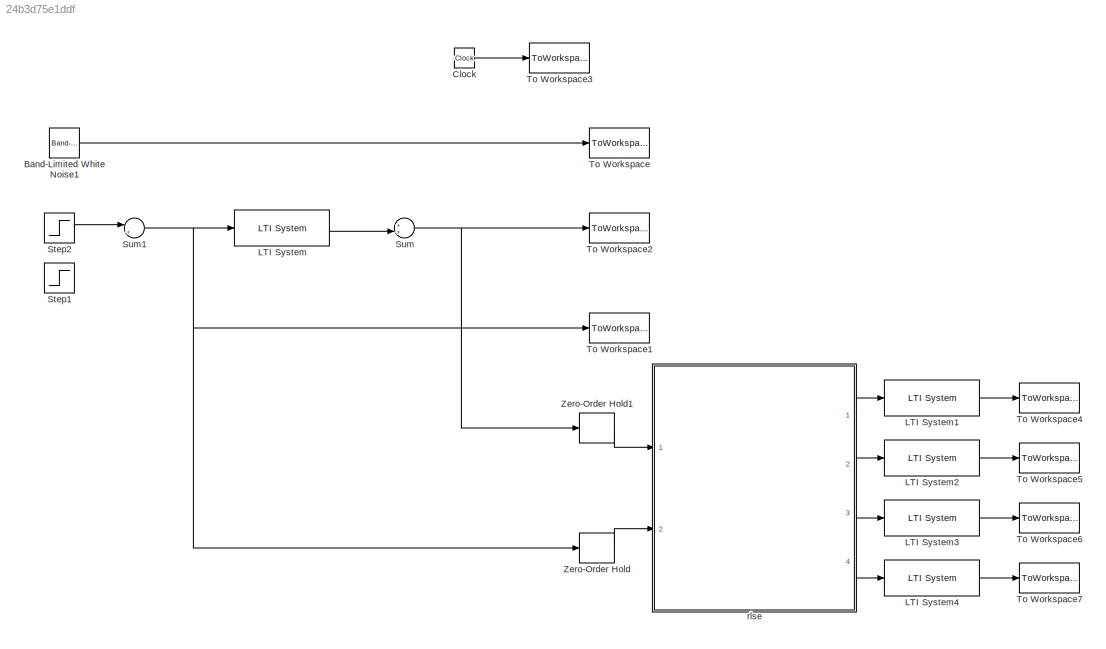
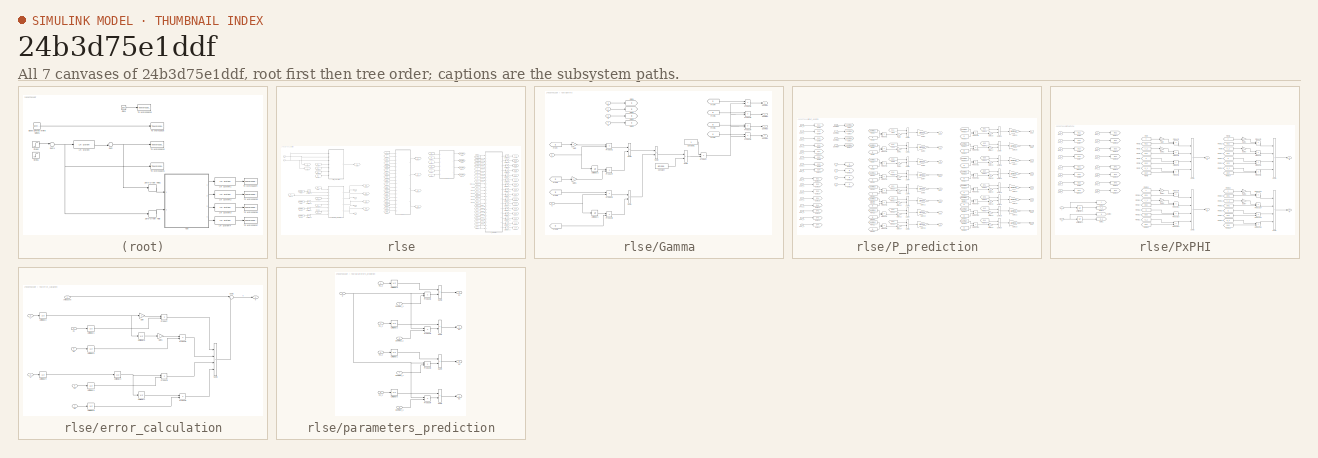
[diagram: thumbnail index - all 7 canvases of the model, root first then tree order]
MODEL slx_24b3d75e1ddf
KIND model
CONFIG AbsTol = auto
CONFIG EnableMultiTasking = off
CONFIG FixedStep = auto
CONFIG MaxStep = Ts
CONFIG MinStep = auto
CONFIG RelTol = Ts
CONFIG SampleTimeConstraint = Unconstrained
CONFIG Solver = VariableStepAuto
CONFIG SolverName = VariableStepAuto
CONFIG StartTime = 0.0
CONFIG StopTime = simlength
BLOCK [Reference] Band-Limited White Noise1  REF=simulink/Sources/Band-Limited
White Noise
  Ports = [0, 1]
  SourceBlock = simulink/Sources/Band-Limited\nWhite Noise
  SourceProductBaseCode = SL
  SourceType = Band-Limited White Noise.
BLOCK [Clock] Clock
BLOCK [Reference] LTI System  REF=cstblocks/LTI System
  Ports = [1, 1]
  SourceBlock = cstblocks/LTI System
  SourceProductBaseCode = CT
  SourceType = LTI Block
BLOCK [Reference] LTI System1  REF=cstblocks/LTI System
  Ports = [1, 1]
  SourceBlock = cstblocks/LTI System
  SourceProductBaseCode = CT
  SourceType = LTI Block
BLOCK [Reference] LTI System2  REF=cstblocks/LTI System
  Ports = [1, 1]
  SourceBlock = cstblocks/LTI System
  SourceProductBaseCode = CT
  SourceType = LTI Block
BLOCK [Reference] LTI System3  REF=cstblocks/LTI System
  Ports = [1, 1]
  SourceBlock = cstblocks/LTI System
  SourceProductBaseCode = CT
  SourceType = LTI Block
BLOCK [Reference] LTI System4  REF=cstblocks/LTI System
  Ports = [1, 1]
  SourceBlock = cstblocks/LTI System
  SourceProductBaseCode = CT
  SourceType = LTI Block
BLOCK [Step] Step1
  After = 0.5
  SampleTime = Tcontrol
  Time = simlength/2
BLOCK [Step] Step2
  After = 0.5
  SampleTime = Tcontrol
  Time = 0.05
BLOCK [Sum] Sum
  Inputs = ++|
  Ports = [2, 1]
BLOCK [Sum] Sum1
  Inputs = |++
  Ports = [2, 1]
BLOCK [ToWorkspace] To Workspace
  FixptAsFi = on
  MaxDataPoints = Nc
  Ports = [1]
  SampleTime = Tc
  VariableName = noise
BLOCK [ToWorkspace] To Workspace1
  FixptAsFi = on
  MaxDataPoints = Nc
  Ports = [1]
  SampleTime = Tc
  VariableName = u_input
BLOCK [ToWorkspace] To Workspace2
  FixptAsFi = on
  MaxDataPoints = Nc
  Ports = [1]
  SampleTime = Tc
  VariableName = y_output
BLOCK [ToWorkspace] To Workspace3
  FixptAsFi = on
  MaxDataPoints = Nc
  Ports = [1]
  SampleTime = Tc
  VariableName = t
BLOCK [ToWorkspace] To Workspace4
  FixptAsFi = on
  MaxDataPoints = Nc
  Ports = [1]
  SampleTime = Tc
  VariableName = a1_hat
BLOCK [ToWorkspace] To Workspace5
  FixptAsFi = on
  MaxDataPoints = Nc
  Ports = [1]
  SampleTime = Tc
  VariableName = b1_hat
BLOCK [ToWorkspace] To Workspace6
  FixptAsFi = on
  MaxDataPoints = Nc
  Ports = [1]
  SampleTime = Tc
  VariableName = a2_hat
BLOCK [ToWorkspace] To Workspace7
  FixptAsFi = on
  MaxDataPoints = Nc
  Ports = [1]
  SampleTime = Tc
  VariableName = b2_hat
BLOCK [ZeroOrderHold] Zero-Order Hold
  SampleTime = Tcontrol
BLOCK [ZeroOrderHold] Zero-Order Hold1
  SampleTime = Tcontrol
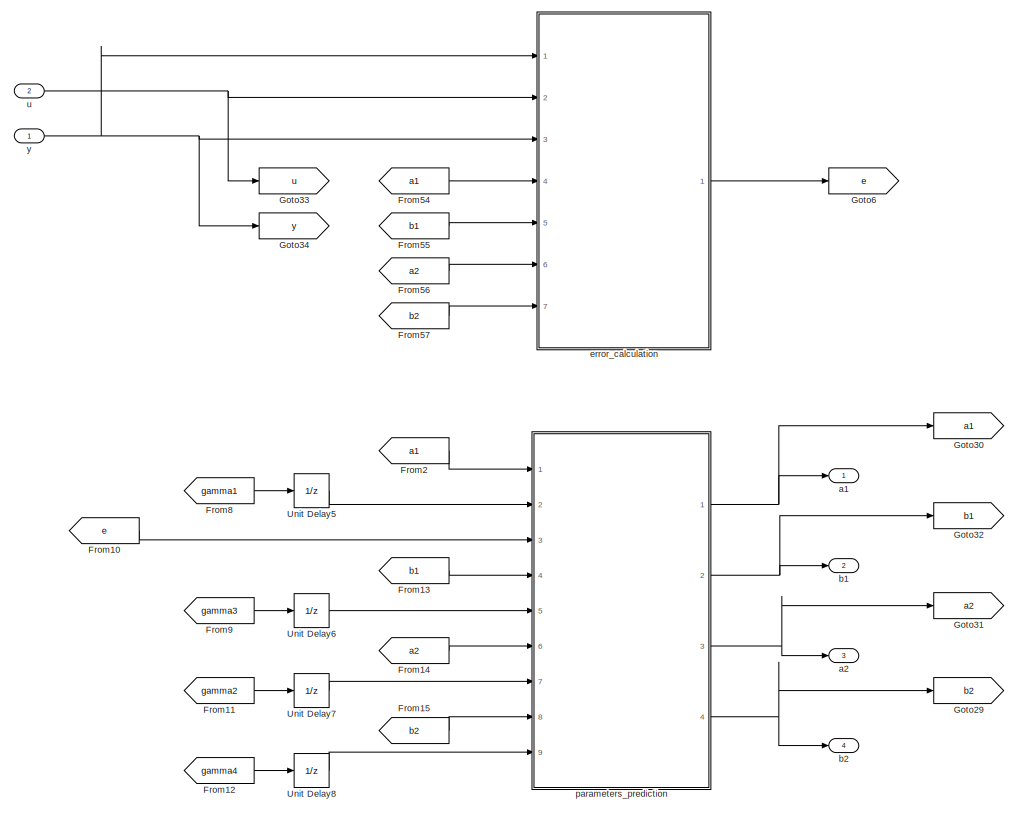
[diagram: rlse - part 1/3, left side, full height]
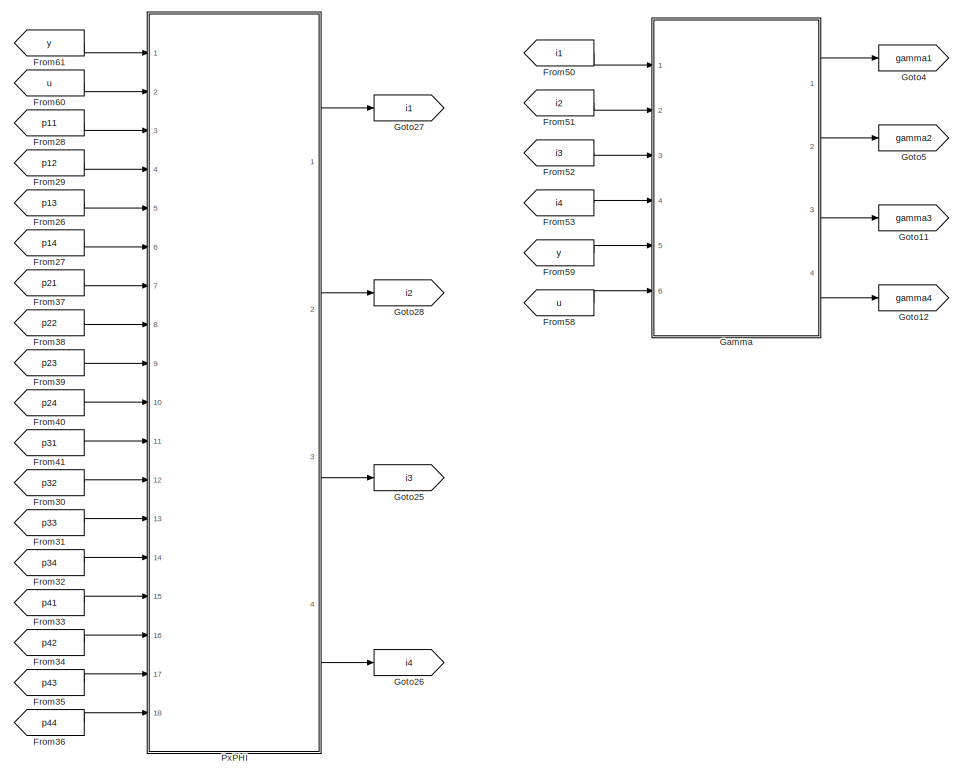
[diagram: rlse - part 2/3, center side, full height]
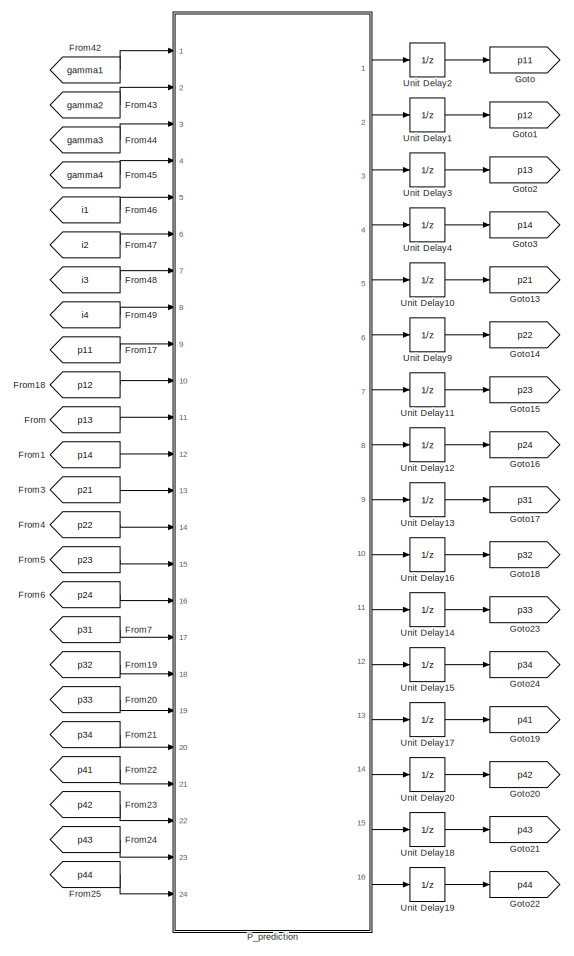
[diagram: rlse - part 3/3, right side, full height]
BLOCK [SubSystem] rlse
  Ports = [2, 4]
  RequestExecContextInheritance = off
BLOCK [From] rlse/From
  GotoTag = p13
BLOCK [From] rlse/From1
  GotoTag = p14
BLOCK [From] rlse/From10
  GotoTag = e
  TagVisibility = global
BLOCK [From] rlse/From11
  GotoTag = gamma2
BLOCK [From] rlse/From12
  GotoTag = gamma4
BLOCK [From] rlse/From13
  GotoTag = b1
BLOCK [From] rlse/From14
  GotoTag = a2
BLOCK [From] rlse/From15
  GotoTag = b2
BLOCK [From] rlse/From17
  GotoTag = p11
BLOCK [From] rlse/From18
  GotoTag = p12
BLOCK [From] rlse/From19
  GotoTag = p32
BLOCK [From] rlse/From2
  GotoTag = a1
BLOCK [From] rlse/From20
  GotoTag = p33
BLOCK [From] rlse/From21
  GotoTag = p34
BLOCK [From] rlse/From22
  GotoTag = p41
BLOCK [From] rlse/From23
  GotoTag = p42
BLOCK [From] rlse/From24
  GotoTag = p43
BLOCK [From] rlse/From25
  GotoTag = p44
BLOCK [From] rlse/From26
  GotoTag = p13
BLOCK [From] rlse/From27
  GotoTag = p14
BLOCK [From] rlse/From28
  GotoTag = p11
BLOCK [From] rlse/From29
  GotoTag = p12
BLOCK [From] rlse/From3
  GotoTag = p21
BLOCK [From] rlse/From30
  GotoTag = p32
BLOCK [From] rlse/From31
  GotoTag = p33
BLOCK [From] rlse/From32
  GotoTag = p34
BLOCK [From] rlse/From33
  GotoTag = p41
BLOCK [From] rlse/From34
  GotoTag = p42
BLOCK [From] rlse/From35
  GotoTag = p43
BLOCK [From] rlse/From36
  GotoTag = p44
BLOCK [From] rlse/From37
  GotoTag = p21
BLOCK [From] rlse/From38
  GotoTag = p22
BLOCK [From] rlse/From39
  GotoTag = p23
BLOCK [From] rlse/From4
  GotoTag = p22
BLOCK [From] rlse/From40
  GotoTag = p24
BLOCK [From] rlse/From41
  GotoTag = p31
BLOCK [From] rlse/From42
  GotoTag = gamma1
BLOCK [From] rlse/From43
  GotoTag = gamma2
BLOCK [From] rlse/From44
  GotoTag = gamma3
BLOCK [From] rlse/From45
  GotoTag = gamma4
BLOCK [From] rlse/From46
  GotoTag = i1
BLOCK [From] rlse/From47
  GotoTag = i2
BLOCK [From] rlse/From48
  GotoTag = i3
BLOCK [From] rlse/From49
  GotoTag = i4
BLOCK [From] rlse/From5
  GotoTag = p23
BLOCK [From] rlse/From50
  GotoTag = i1
BLOCK [From] rlse/From51
  GotoTag = i2
BLOCK [From] rlse/From52
  GotoTag = i3
BLOCK [From] rlse/From53
  GotoTag = i4
BLOCK [From] rlse/From54
  GotoTag = a1
BLOCK [From] rlse/From55
  GotoTag = b1
BLOCK [From] rlse/From56
  GotoTag = a2
BLOCK [From] rlse/From57
  GotoTag = b2
BLOCK [From] rlse/From58
  GotoTag = u
BLOCK [From] rlse/From59
  GotoTag = y
BLOCK [From] rlse/From6
  GotoTag = p24
BLOCK [From] rlse/From60
  GotoTag = u
BLOCK [From] rlse/From61
  GotoTag = y
BLOCK [From] rlse/From7
  GotoTag = p31
BLOCK [From] rlse/From8
  GotoTag = gamma1
BLOCK [From] rlse/From9
  GotoTag = gamma3
BLOCK [SubSystem] rlse/Gamma
  Ports = [6, 4]
  RequestExecContextInheritance = off
BLOCK [Constant] rlse/Gamma/Constant
  Value = lambda
BLOCK [Constant] rlse/Gamma/Constant1
BLOCK [From] rlse/Gamma/From
  GotoTag = i1
BLOCK [From] rlse/Gamma/From1
  GotoTag = i2
BLOCK [From] rlse/Gamma/From2
  GotoTag = i3
BLOCK [From] rlse/Gamma/From3
  GotoTag = i4
BLOCK [From] rlse/Gamma/From4
  GotoTag = i1
BLOCK [From] rlse/Gamma/From5
  GotoTag = i2
BLOCK [From] rlse/Gamma/From6
  GotoTag = i3
BLOCK [From] rlse/Gamma/From7
  GotoTag = i4
BLOCK [Gain] rlse/Gamma/Gain
  Gain = -1
BLOCK [Gain] rlse/Gamma/Gain1
  Gain = -1
BLOCK [Goto] rlse/Gamma/Goto1
  GotoTag = i2
BLOCK [Goto] rlse/Gamma/Goto2
  GotoTag = i3
BLOCK [Goto] rlse/Gamma/Goto3
  GotoTag = i4
BLOCK [Goto] rlse/Gamma/Goto4
  GotoTag = i1
BLOCK [Product] rlse/Gamma/Product
  Inputs = */
  Ports = [2, 1]
BLOCK [Product] rlse/Gamma/Product1
  Ports = [2, 1]
BLOCK [Product] rlse/Gamma/Product2
  Ports = [2, 1]
BLOCK [Product] rlse/Gamma/Product3
  Ports = [2, 1]
BLOCK [Product] rlse/Gamma/Product4
  Ports = [2, 1]
BLOCK [Product] rlse/Gamma/Product5
  Ports = [2, 1]
BLOCK [Product] rlse/Gamma/Product6
  Ports = [2, 1]
BLOCK [Product] rlse/Gamma/Product7
  Ports = [2, 1]
BLOCK [Product] rlse/Gamma/Product8
  Ports = [2, 1]
BLOCK [Sum] rlse/Gamma/Sum1
  IconShape = rectangular
  Ports = [2, 1]
BLOCK [Sum] rlse/Gamma/Sum2
  IconShape = rectangular
  Ports = [2, 1]
BLOCK [Sum] rlse/Gamma/Sum3
  IconShape = rectangular
  Ports = [2, 1]
BLOCK [Sum] rlse/Gamma/Sum5
  IconShape = rectangular
  Ports = [2, 1]
BLOCK [UnitDelay] rlse/Gamma/Unit Delay1
  HasFrameUpgradeWarning = on
  SampleTime = Tcontrol
BLOCK [UnitDelay] rlse/Gamma/Unit Delay2
  HasFrameUpgradeWarning = on
  SampleTime = Tcontrol
BLOCK [Outport] rlse/Gamma/gamma1
  VectorParamsAs1DForOutWhenUnconnected = off
BLOCK [Outport] rlse/Gamma/gamma2
  Port = 2
  VectorParamsAs1DForOutWhenUnconnected = off
BLOCK [Outport] rlse/Gamma/gamma3
  Port = 3
  VectorParamsAs1DForOutWhenUnconnected = off
BLOCK [Outport] rlse/Gamma/gamma4
  Port = 4
  VectorParamsAs1DForOutWhenUnconnected = off
BLOCK [Inport] rlse/Gamma/i1
BLOCK [Inport] rlse/Gamma/i2
  Port = 2
BLOCK [Inport] rlse/Gamma/i3
  Port = 3
BLOCK [Inport] rlse/Gamma/i4
  Port = 4
BLOCK [Inport] rlse/Gamma/u
  Port = 6
BLOCK [Inport] rlse/Gamma/y
  Port = 5
BLOCK [Goto] rlse/Goto
  GotoTag = p11
BLOCK [Goto] rlse/Goto1
  GotoTag = p12
BLOCK [Goto] rlse/Goto11
  GotoTag = gamma3
BLOCK [Goto] rlse/Goto12
  GotoTag = gamma4
BLOCK [Goto] rlse/Goto13
  GotoTag = p21
BLOCK [Goto] rlse/Goto14
  GotoTag = p22
BLOCK [Goto] rlse/Goto15
  GotoTag = p23
BLOCK [Goto] rlse/Goto16
  GotoTag = p24
BLOCK [Goto] rlse/Goto17
  GotoTag = p31
BLOCK [Goto] rlse/Goto18
  GotoTag = p32
BLOCK [Goto] rlse/Goto19
  GotoTag = p41
BLOCK [Goto] rlse/Goto2
  GotoTag = p13
BLOCK [Goto] rlse/Goto20
  GotoTag = p42
BLOCK [Goto] rlse/Goto21
  GotoTag = p43
BLOCK [Goto] rlse/Goto22
  GotoTag = p44
BLOCK [Goto] rlse/Goto23
  GotoTag = p33
BLOCK [Goto] rlse/Goto24
  GotoTag = p34
BLOCK [Goto] rlse/Goto25
  GotoTag = i3
BLOCK [Goto] rlse/Goto26
  GotoTag = i4
BLOCK [Goto] rlse/Goto27
  GotoTag = i1
BLOCK [Goto] rlse/Goto28
  GotoTag = i2
BLOCK [Goto] rlse/Goto29
  GotoTag = b2
BLOCK [Goto] rlse/Goto3
  GotoTag = p14
BLOCK [Goto] rlse/Goto30
  GotoTag = a1
BLOCK [Goto] rlse/Goto31
  GotoTag = a2
BLOCK [Goto] rlse/Goto32
  GotoTag = b1
BLOCK [Goto] rlse/Goto33
  GotoTag = u
BLOCK [Goto] rlse/Goto34
  GotoTag = y
BLOCK [Goto] rlse/Goto4
  GotoTag = gamma1
BLOCK [Goto] rlse/Goto5
  GotoTag = gamma2
BLOCK [Goto] rlse/Goto6
  GotoTag = e
  TagVisibility = global
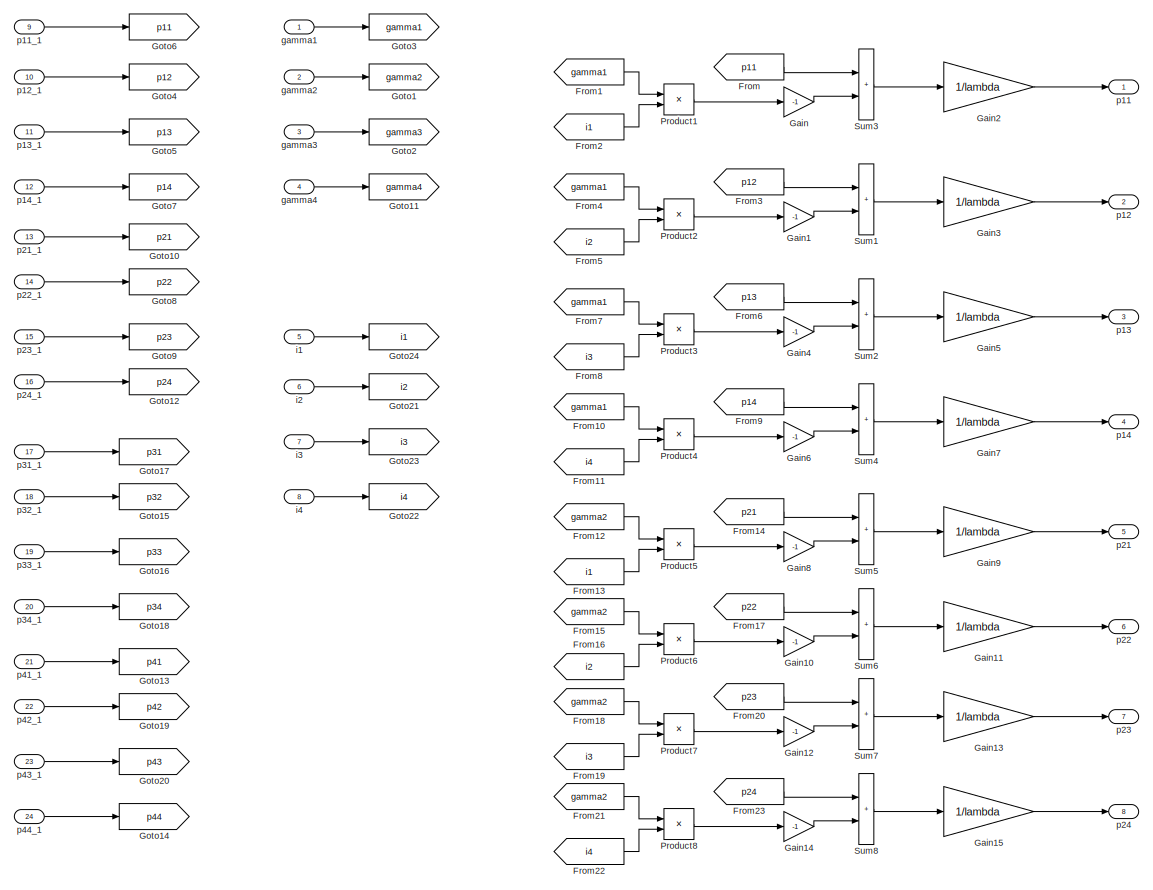
[diagram: rlse/P_prediction - part 1/2, left side, full height]
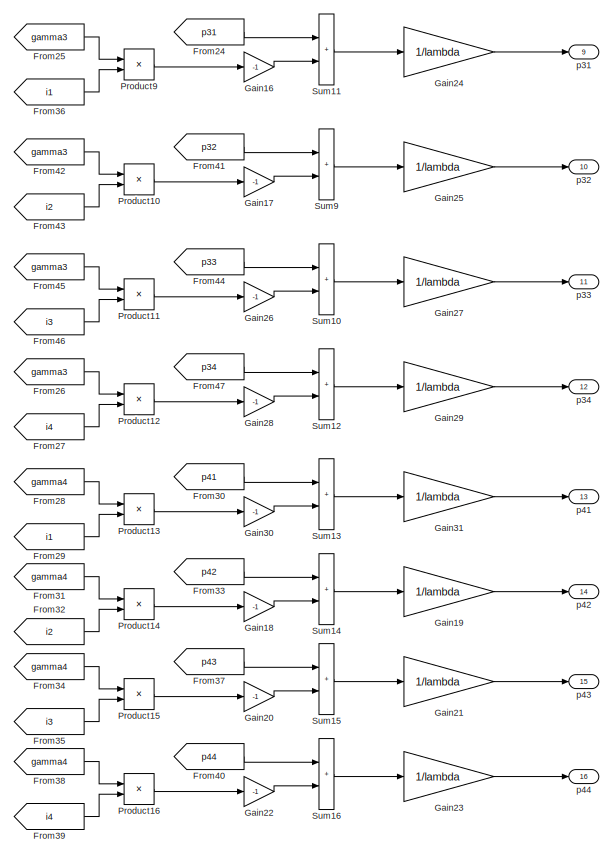
[diagram: rlse/P_prediction - part 2/2, right side, full height]
BLOCK [SubSystem] rlse/P_prediction
  Ports = [24, 16]
  RequestExecContextInheritance = off
BLOCK [From] rlse/P_prediction/From
  GotoTag = p11
BLOCK [From] rlse/P_prediction/From1
  GotoTag = gamma1
BLOCK [From] rlse/P_prediction/From10
  GotoTag = gamma1
BLOCK [From] rlse/P_prediction/From11
  GotoTag = i4
BLOCK [From] rlse/P_prediction/From12
  GotoTag = gamma2
BLOCK [From] rlse/P_prediction/From13
  GotoTag = i1
BLOCK [From] rlse/P_prediction/From14
  GotoTag = p21
BLOCK [From] rlse/P_prediction/From15
  GotoTag = gamma2
BLOCK [From] rlse/P_prediction/From16
  GotoTag = i2
BLOCK [From] rlse/P_prediction/From17
  GotoTag = p22
BLOCK [From] rlse/P_prediction/From18
  GotoTag = gamma2
BLOCK [From] rlse/P_prediction/From19
  GotoTag = i3
BLOCK [From] rlse/P_prediction/From2
  GotoTag = i1
BLOCK [From] rlse/P_prediction/From20
  GotoTag = p23
BLOCK [From] rlse/P_prediction/From21
  GotoTag = gamma2
BLOCK [From] rlse/P_prediction/From22
  GotoTag = i4
BLOCK [From] rlse/P_prediction/From23
  GotoTag = p24
BLOCK [From] rlse/P_prediction/From24
  GotoTag = p31
BLOCK [From] rlse/P_prediction/From25
  GotoTag = gamma3
BLOCK [From] rlse/P_prediction/From26
  GotoTag = gamma3
BLOCK [From] rlse/P_prediction/From27
  GotoTag = i4
BLOCK [From] rlse/P_prediction/From28
  GotoTag = gamma4
BLOCK [From] rlse/P_prediction/From29
  GotoTag = i1
BLOCK [From] rlse/P_prediction/From3
  GotoTag = p12
BLOCK [From] rlse/P_prediction/From30
  GotoTag = p41
BLOCK [From] rlse/P_prediction/From31
  GotoTag = gamma4
BLOCK [From] rlse/P_prediction/From32
  GotoTag = i2
BLOCK [From] rlse/P_prediction/From33
  GotoTag = p42
BLOCK [From] rlse/P_prediction/From34
  GotoTag = gamma4
BLOCK [From] rlse/P_prediction/From35
  GotoTag = i3
BLOCK [From] rlse/P_prediction/From36
  GotoTag = i1
BLOCK [From] rlse/P_prediction/From37
  GotoTag = p43
BLOCK [From] rlse/P_prediction/From38
  GotoTag = gamma4
BLOCK [From] rlse/P_prediction/From39
  GotoTag = i4
BLOCK [From] rlse/P_prediction/From4
  GotoTag = gamma1
BLOCK [From] rlse/P_prediction/From40
  GotoTag = p44
BLOCK [From] rlse/P_prediction/From41
  GotoTag = p32
BLOCK [From] rlse/P_prediction/From42
  GotoTag = gamma3
BLOCK [From] rlse/P_prediction/From43
  GotoTag = i2
BLOCK [From] rlse/P_prediction/From44
  GotoTag = p33
BLOCK [From] rlse/P_prediction/From45
  GotoTag = gamma3
BLOCK [From] rlse/P_prediction/From46
  GotoTag = i3
BLOCK [From] rlse/P_prediction/From47
  GotoTag = p34
BLOCK [From] rlse/P_prediction/From5
  GotoTag = i2
BLOCK [From] rlse/P_prediction/From6
  GotoTag = p13
BLOCK [From] rlse/P_prediction/From7
  GotoTag = gamma1
BLOCK [From] rlse/P_prediction/From8
  GotoTag = i3
BLOCK [From] rlse/P_prediction/From9
  GotoTag = p14
BLOCK [Gain] rlse/P_prediction/Gain
  Gain = -1
BLOCK [Gain] rlse/P_prediction/Gain1
  Gain = -1
BLOCK [Gain] rlse/P_prediction/Gain10
  Gain = -1
BLOCK [Gain] rlse/P_prediction/Gain11
  Gain = 1/lambda
BLOCK [Gain] rlse/P_prediction/Gain12
  Gain = -1
BLOCK [Gain] rlse/P_prediction/Gain13
  Gain = 1/lambda
BLOCK [Gain] rlse/P_prediction/Gain14
  Gain = -1
BLOCK [Gain] rlse/P_prediction/Gain15
  Gain = 1/lambda
BLOCK [Gain] rlse/P_prediction/Gain16
  Gain = -1
BLOCK [Gain] rlse/P_prediction/Gain17
  Gain = -1
BLOCK [Gain] rlse/P_prediction/Gain18
  Gain = -1
BLOCK [Gain] rlse/P_prediction/Gain19
  Gain = 1/lambda
BLOCK [Gain] rlse/P_prediction/Gain2
  Gain = 1/lambda
BLOCK [Gain] rlse/P_prediction/Gain20
  Gain = -1
BLOCK [Gain] rlse/P_prediction/Gain21
  Gain = 1/lambda
BLOCK [Gain] rlse/P_prediction/Gain22
  Gain = -1
BLOCK [Gain] rlse/P_prediction/Gain23
  Gain = 1/lambda
BLOCK [Gain] rlse/P_prediction/Gain24
  Gain = 1/lambda
BLOCK [Gain] rlse/P_prediction/Gain25
  Gain = 1/lambda
BLOCK [Gain] rlse/P_prediction/Gain26
  Gain = -1
BLOCK [Gain] rlse/P_prediction/Gain27
  Gain = 1/lambda
BLOCK [Gain] rlse/P_prediction/Gain28
  Gain = -1
BLOCK [Gain] rlse/P_prediction/Gain29
  Gain = 1/lambda
BLOCK [Gain] rlse/P_prediction/Gain3
  Gain = 1/lambda
BLOCK [Gain] rlse/P_prediction/Gain30
  Gain = -1
BLOCK [Gain] rlse/P_prediction/Gain31
  Gain = 1/lambda
BLOCK [Gain] rlse/P_prediction/Gain4
  Gain = -1
BLOCK [Gain] rlse/P_prediction/Gain5
  Gain = 1/lambda
BLOCK [Gain] rlse/P_prediction/Gain6
  Gain = -1
BLOCK [Gain] rlse/P_prediction/Gain7
  Gain = 1/lambda
BLOCK [Gain] rlse/P_prediction/Gain8
  Gain = -1
BLOCK [Gain] rlse/P_prediction/Gain9
  Gain = 1/lambda
BLOCK [Goto] rlse/P_prediction/Goto1
  GotoTag = gamma2
BLOCK [Goto] rlse/P_prediction/Goto10
  GotoTag = p21
BLOCK [Goto] rlse/P_prediction/Goto11
  GotoTag = gamma4
BLOCK [Goto] rlse/P_prediction/Goto12
  GotoTag = p24
BLOCK [Goto] rlse/P_prediction/Goto13
  GotoTag = p41
BLOCK [Goto] rlse/P_prediction/Goto14
  GotoTag = p44
BLOCK [Goto] rlse/P_prediction/Goto15
  GotoTag = p32
BLOCK [Goto] rlse/P_prediction/Goto16
  GotoTag = p33
BLOCK [Goto] rlse/P_prediction/Goto17
  GotoTag = p31
BLOCK [Goto] rlse/P_prediction/Goto18
  GotoTag = p34
BLOCK [Goto] rlse/P_prediction/Goto19
  GotoTag = p42
BLOCK [Goto] rlse/P_prediction/Goto2
  GotoTag = gamma3
BLOCK [Goto] rlse/P_prediction/Goto20
  GotoTag = p43
BLOCK [Goto] rlse/P_prediction/Goto21
  GotoTag = i2
BLOCK [Goto] rlse/P_prediction/Goto22
  GotoTag = i4
BLOCK [Goto] rlse/P_prediction/Goto23
  GotoTag = i3
BLOCK [Goto] rlse/P_prediction/Goto24
  GotoTag = i1
BLOCK [Goto] rlse/P_prediction/Goto3
  GotoTag = gamma1
BLOCK [Goto] rlse/P_prediction/Goto4
  GotoTag = p12
BLOCK [Goto] rlse/P_prediction/Goto5
  GotoTag = p13
BLOCK [Goto] rlse/P_prediction/Goto6
  GotoTag = p11
BLOCK [Goto] rlse/P_prediction/Goto7
  GotoTag = p14
BLOCK [Goto] rlse/P_prediction/Goto8
  GotoTag = p22
BLOCK [Goto] rlse/P_prediction/Goto9
  GotoTag = p23
BLOCK [Product] rlse/P_prediction/Product1
  Ports = [2, 1]
BLOCK [Product] rlse/P_prediction/Product10
  Ports = [2, 1]
BLOCK [Product] rlse/P_prediction/Product11
  Ports = [2, 1]
BLOCK [Product] rlse/P_prediction/Product12
  Ports = [2, 1]
BLOCK [Product] rlse/P_prediction/Product13
  Ports = [2, 1]
BLOCK [Product] rlse/P_prediction/Product14
  Ports = [2, 1]
BLOCK [Product] rlse/P_prediction/Product15
  Ports = [2, 1]
BLOCK [Product] rlse/P_prediction/Product16
  Ports = [2, 1]
BLOCK [Product] rlse/P_prediction/Product2
  Ports = [2, 1]
BLOCK [Product] rlse/P_prediction/Product3
  Ports = [2, 1]
BLOCK [Product] rlse/P_prediction/Product4
  Ports = [2, 1]
BLOCK [Product] rlse/P_prediction/Product5
  Ports = [2, 1]
BLOCK [Product] rlse/P_prediction/Product6
  Ports = [2, 1]
BLOCK [Product] rlse/P_prediction/Product7
  Ports = [2, 1]
BLOCK [Product] rlse/P_prediction/Product8
  Ports = [2, 1]
BLOCK [Product] rlse/P_prediction/Product9
  Ports = [2, 1]
BLOCK [Sum] rlse/P_prediction/Sum1
  IconShape = rectangular
  Ports = [2, 1]
BLOCK [Sum] rlse/P_prediction/Sum10
  IconShape = rectangular
  Ports = [2, 1]
BLOCK [Sum] rlse/P_prediction/Sum11
  IconShape = rectangular
  Ports = [2, 1]
BLOCK [Sum] rlse/P_prediction/Sum12
  IconShape = rectangular
  Ports = [2, 1]
BLOCK [Sum] rlse/P_prediction/Sum13
  IconShape = rectangular
  Ports = [2, 1]
BLOCK [Sum] rlse/P_prediction/Sum14
  IconShape = rectangular
  Ports = [2, 1]
BLOCK [Sum] rlse/P_prediction/Sum15
  IconShape = rectangular
  Ports = [2, 1]
BLOCK [Sum] rlse/P_prediction/Sum16
  IconShape = rectangular
  Ports = [2, 1]
BLOCK [Sum] rlse/P_prediction/Sum2
  IconShape = rectangular
  Ports = [2, 1]
BLOCK [Sum] rlse/P_prediction/Sum3
  IconShape = rectangular
  Ports = [2, 1]
BLOCK [Sum] rlse/P_prediction/Sum4
  IconShape = rectangular
  Ports = [2, 1]
BLOCK [Sum] rlse/P_prediction/Sum5
  IconShape = rectangular
  Ports = [2, 1]
BLOCK [Sum] rlse/P_prediction/Sum6
  IconShape = rectangular
  Ports = [2, 1]
BLOCK [Sum] rlse/P_prediction/Sum7
  IconShape = rectangular
  Ports = [2, 1]
BLOCK [Sum] rlse/P_prediction/Sum8
  IconShape = rectangular
  Ports = [2, 1]
BLOCK [Sum] rlse/P_prediction/Sum9
  IconShape = rectangular
  Ports = [2, 1]
BLOCK [Inport] rlse/P_prediction/gamma1
BLOCK [Inport] rlse/P_prediction/gamma2
  Port = 2
BLOCK [Inport] rlse/P_prediction/gamma3
  Port = 3
BLOCK [Inport] rlse/P_prediction/gamma4
  Port = 4
BLOCK [Inport] rlse/P_prediction/i1
  Port = 5
BLOCK [Inport] rlse/P_prediction/i2
  Port = 6
BLOCK [Inport] rlse/P_prediction/i3
  Port = 7
BLOCK [Inport] rlse/P_prediction/i4
  Port = 8
BLOCK [Outport] rlse/P_prediction/p11
  VectorParamsAs1DForOutWhenUnconnected = off
BLOCK [Inport] rlse/P_prediction/p11_1
  Port = 9
BLOCK [Outport] rlse/P_prediction/p12
  Port = 2
  VectorParamsAs1DForOutWhenUnconnected = off
BLOCK [Inport] rlse/P_prediction/p12_1
  Port = 10
BLOCK [Outport] rlse/P_prediction/p13
  Port = 3
  VectorParamsAs1DForOutWhenUnconnected = off
BLOCK [Inport] rlse/P_prediction/p13_1
  Port = 11
BLOCK [Outport] rlse/P_prediction/p14
  Port = 4
  VectorParamsAs1DForOutWhenUnconnected = off
BLOCK [Inport] rlse/P_prediction/p14_1
  Port = 12
BLOCK [Outport] rlse/P_prediction/p21
  Port = 5
  VectorParamsAs1DForOutWhenUnconnected = off
BLOCK [Inport] rlse/P_prediction/p21_1
  Port = 13
BLOCK [Outport] rlse/P_prediction/p22
  Port = 6
  VectorParamsAs1DForOutWhenUnconnected = off
BLOCK [Inport] rlse/P_prediction/p22_1
  Port = 14
BLOCK [Outport] rlse/P_prediction/p23
  Port = 7
  VectorParamsAs1DForOutWhenUnconnected = off
BLOCK [Inport] rlse/P_prediction/p23_1
  Port = 15
BLOCK [Outport] rlse/P_prediction/p24
  Port = 8
  VectorParamsAs1DForOutWhenUnconnected = off
BLOCK [Inport] rlse/P_prediction/p24_1
  Port = 16
BLOCK [Outport] rlse/P_prediction/p31
  Port = 9
  VectorParamsAs1DForOutWhenUnconnected = off
BLOCK [Inport] rlse/P_prediction/p31_1
  Port = 17
BLOCK [Outport] rlse/P_prediction/p32
  Port = 10
  VectorParamsAs1DForOutWhenUnconnected = off
BLOCK [Inport] rlse/P_prediction/p32_1
  Port = 18
BLOCK [Outport] rlse/P_prediction/p33
  Port = 11
  VectorParamsAs1DForOutWhenUnconnected = off
BLOCK [Inport] rlse/P_prediction/p33_1
  Port = 19
BLOCK [Outport] rlse/P_prediction/p34
  Port = 12
  VectorParamsAs1DForOutWhenUnconnected = off
BLOCK [Inport] rlse/P_prediction/p34_1
  Port = 20
BLOCK [Outport] rlse/P_prediction/p41
  Port = 13
  VectorParamsAs1DForOutWhenUnconnected = off
BLOCK [Inport] rlse/P_prediction/p41_1
  Port = 21
BLOCK [Outport] rlse/P_prediction/p42
  Port = 14
  VectorParamsAs1DForOutWhenUnconnected = off
BLOCK [Inport] rlse/P_prediction/p42_1
  Port = 22
BLOCK [Outport] rlse/P_prediction/p43
  Port = 15
  VectorParamsAs1DForOutWhenUnconnected = off
BLOCK [Inport] rlse/P_prediction/p43_1
  Port = 23
BLOCK [Outport] rlse/P_prediction/p44
  Port = 16
  VectorParamsAs1DForOutWhenUnconnected = off
BLOCK [Inport] rlse/P_prediction/p44_1
  Port = 24
BLOCK [SubSystem] rlse/PxPHI
  Ports = [18, 4]
  RequestExecContextInheritance = off
BLOCK [From] rlse/PxPHI/From
  GotoTag = y
BLOCK [From] rlse/PxPHI/From1
  GotoTag = y_1
BLOCK [From] rlse/PxPHI/From10
  GotoTag = p21
BLOCK [From] rlse/PxPHI/From11
  GotoTag = p22
BLOCK [From] rlse/PxPHI/From12
  GotoTag = u
BLOCK [From] rlse/PxPHI/From13
  GotoTag = p23
BLOCK [From] rlse/PxPHI/From14
  GotoTag = p24
BLOCK [From] rlse/PxPHI/From15
  GotoTag = u_1
BLOCK [From] rlse/PxPHI/From16
  GotoTag = p31
BLOCK [From] rlse/PxPHI/From17
  GotoTag = p32
BLOCK [From] rlse/PxPHI/From18
  GotoTag = u
BLOCK [From] rlse/PxPHI/From19
  GotoTag = p33
BLOCK [From] rlse/PxPHI/From2
  GotoTag = p11
BLOCK [From] rlse/PxPHI/From20
  GotoTag = p34
BLOCK [From] rlse/PxPHI/From21
  GotoTag = u_1
BLOCK [From] rlse/PxPHI/From22
  GotoTag = y
BLOCK [From] rlse/PxPHI/From23
  GotoTag = y_1
BLOCK [From] rlse/PxPHI/From24
  GotoTag = p41
BLOCK [From] rlse/PxPHI/From25
  GotoTag = p42
BLOCK [From] rlse/PxPHI/From26
  GotoTag = u
BLOCK [From] rlse/PxPHI/From27
  GotoTag = p43
BLOCK [From] rlse/PxPHI/From28
  GotoTag = p44
BLOCK [From] rlse/PxPHI/From29
  GotoTag = u_1
BLOCK [From] rlse/PxPHI/From3
  GotoTag = p12
BLOCK [From] rlse/PxPHI/From30
  GotoTag = y
BLOCK [From] rlse/PxPHI/From31
  GotoTag = y_1
BLOCK [From] rlse/PxPHI/From4
  GotoTag = u
BLOCK [From] rlse/PxPHI/From5
  GotoTag = p13
BLOCK [From] rlse/PxPHI/From6
  GotoTag = p14
BLOCK [From] rlse/PxPHI/From7
  GotoTag = u_1
BLOCK [From] rlse/PxPHI/From8
  GotoTag = y
BLOCK [From] rlse/PxPHI/From9
  GotoTag = y_1
BLOCK [Gain] rlse/PxPHI/Gain
  Gain = -1
BLOCK [Gain] rlse/PxPHI/Gain1
  Gain = -1
BLOCK [Gain] rlse/PxPHI/Gain2
  Gain = -1
BLOCK [Gain] rlse/PxPHI/Gain3
  Gain = -1
BLOCK [Gain] rlse/PxPHI/Gain4
  Gain = -1
BLOCK [Gain] rlse/PxPHI/Gain5
  Gain = -1
BLOCK [Gain] rlse/PxPHI/Gain6
  Gain = -1
BLOCK [Gain] rlse/PxPHI/Gain7
  Gain = -1
BLOCK [Goto] rlse/PxPHI/Goto1
  GotoTag = u_1
BLOCK [Goto] rlse/PxPHI/Goto10
  GotoTag = p21
BLOCK [Goto] rlse/PxPHI/Goto11
  GotoTag = y_1
BLOCK [Goto] rlse/PxPHI/Goto12
  GotoTag = p24
BLOCK [Goto] rlse/PxPHI/Goto13
  GotoTag = p41
BLOCK [Goto] rlse/PxPHI/Goto14
  GotoTag = p44
BLOCK [Goto] rlse/PxPHI/Goto15
  GotoTag = p32
BLOCK [Goto] rlse/PxPHI/Goto16
  GotoTag = p33
BLOCK [Goto] rlse/PxPHI/Goto17
  GotoTag = p31
BLOCK [Goto] rlse/PxPHI/Goto18
  GotoTag = p34
BLOCK [Goto] rlse/PxPHI/Goto19
  GotoTag = p42
BLOCK [Goto] rlse/PxPHI/Goto2
  GotoTag = y
BLOCK [Goto] rlse/PxPHI/Goto20
  GotoTag = p43
BLOCK [Goto] rlse/PxPHI/Goto3
  GotoTag = u
BLOCK [Goto] rlse/PxPHI/Goto4
  GotoTag = p12
BLOCK [Goto] rlse/PxPHI/Goto5
  GotoTag = p13
BLOCK [Goto] rlse/PxPHI/Goto6
  GotoTag = p11
BLOCK [Goto] rlse/PxPHI/Goto7
  GotoTag = p14
BLOCK [Goto] rlse/PxPHI/Goto8
  GotoTag = p22
BLOCK [Goto] rlse/PxPHI/Goto9
  GotoTag = p23
BLOCK [Product] rlse/PxPHI/Product1
  Ports = [2, 1]
BLOCK [Product] rlse/PxPHI/Product10
  Ports = [2, 1]
BLOCK [Product] rlse/PxPHI/Product11
  Ports = [2, 1]
BLOCK [Product] rlse/PxPHI/Product12
  Ports = [2, 1]
BLOCK [Product] rlse/PxPHI/Product13
  Ports = [2, 1]
BLOCK [Product] rlse/PxPHI/Product14
  Ports = [2, 1]
BLOCK [Product] rlse/PxPHI/Product15
  Ports = [2, 1]
BLOCK [Product] rlse/PxPHI/Product16
  Ports = [2, 1]
BLOCK [Product] rlse/PxPHI/Product2
  Ports = [2, 1]
BLOCK [Product] rlse/PxPHI/Product3
  Ports = [2, 1]
BLOCK [Product] rlse/PxPHI/Product4
  Ports = [2, 1]
BLOCK [Product] rlse/PxPHI/Product5
  Ports = [2, 1]
BLOCK [Product] rlse/PxPHI/Product6
  Ports = [2, 1]
BLOCK [Product] rlse/PxPHI/Product7
  Ports = [2, 1]
BLOCK [Product] rlse/PxPHI/Product8
  Ports = [2, 1]
BLOCK [Product] rlse/PxPHI/Product9
  Ports = [2, 1]
BLOCK [Sum] rlse/PxPHI/Sum1
  IconShape = rectangular
  Inputs = ++++
  Ports = [4, 1]
BLOCK [Sum] rlse/PxPHI/Sum2
  IconShape = rectangular
  Inputs = ++++
  Ports = [4, 1]
BLOCK [Sum] rlse/PxPHI/Sum3
  IconShape = rectangular
  Inputs = ++++
  Ports = [4, 1]
BLOCK [Sum] rlse/PxPHI/Sum4
  IconShape = rectangular
  Inputs = ++++
  Ports = [4, 1]
BLOCK [UnitDelay] rlse/PxPHI/Unit Delay1
  HasFrameUpgradeWarning = on
  SampleTime = Tcontrol
BLOCK [UnitDelay] rlse/PxPHI/Unit Delay6
  HasFrameUpgradeWarning = on
  SampleTime = Tcontrol
BLOCK [Outport] rlse/PxPHI/i1
  VectorParamsAs1DForOutWhenUnconnected = off
BLOCK [Outport] rlse/PxPHI/i2
  Port = 2
  VectorParamsAs1DForOutWhenUnconnected = off
BLOCK [Outport] rlse/PxPHI/i3
  Port = 3
  VectorParamsAs1DForOutWhenUnconnected = off
BLOCK [Outport] rlse/PxPHI/i4
  Port = 4
  VectorParamsAs1DForOutWhenUnconnected = off
BLOCK [Inport] rlse/PxPHI/p11_1
  Port = 3
BLOCK [Inport] rlse/PxPHI/p12_1
  Port = 4
BLOCK [Inport] rlse/PxPHI/p13_1
  Port = 5
BLOCK [Inport] rlse/PxPHI/p14_1
  Port = 6
BLOCK [Inport] rlse/PxPHI/p21_1
  Port = 7
BLOCK [Inport] rlse/PxPHI/p22_1
  Port = 8
BLOCK [Inport] rlse/PxPHI/p23_1
  Port = 9
BLOCK [Inport] rlse/PxPHI/p24_1
  Port = 10
BLOCK [Inport] rlse/PxPHI/p31_1
  Port = 11
BLOCK [Inport] rlse/PxPHI/p32_1
  Port = 12
BLOCK [Inport] rlse/PxPHI/p33_1
  Port = 13
BLOCK [Inport] rlse/PxPHI/p34_1
  Port = 14
BLOCK [Inport] rlse/PxPHI/p41_1
  Port = 15
BLOCK [Inport] rlse/PxPHI/p42_1
  Port = 16
BLOCK [Inport] rlse/PxPHI/p43_1
  Port = 17
BLOCK [Inport] rlse/PxPHI/p44_1
  Port = 18
BLOCK [Inport] rlse/PxPHI/u
  Port = 2
BLOCK [Inport] rlse/PxPHI/y
BLOCK [UnitDelay] rlse/Unit Delay1
  HasFrameUpgradeWarning = on
  InitialCondition = iniP12
  SampleTime = Tcontrol
BLOCK [UnitDelay] rlse/Unit Delay10
  HasFrameUpgradeWarning = on
  InitialCondition = iniP21
  SampleTime = Tcontrol
BLOCK [UnitDelay] rlse/Unit Delay11
  HasFrameUpgradeWarning = on
  InitialCondition = iniP23
  SampleTime = Tcontrol
BLOCK [UnitDelay] rlse/Unit Delay12
  HasFrameUpgradeWarning = on
  InitialCondition = iniP24
  SampleTime = Tcontrol
BLOCK [UnitDelay] rlse/Unit Delay13
  HasFrameUpgradeWarning = on
  InitialCondition = iniP31
  SampleTime = Tcontrol
BLOCK [UnitDelay] rlse/Unit Delay14
  HasFrameUpgradeWarning = on
  InitialCondition = iniP33
  SampleTime = Tcontrol
BLOCK [UnitDelay] rlse/Unit Delay15
  HasFrameUpgradeWarning = on
  InitialCondition = iniP34
  SampleTime = Tcontrol
BLOCK [UnitDelay] rlse/Unit Delay16
  HasFrameUpgradeWarning = on
  InitialCondition = iniP32
  SampleTime = Tcontrol
BLOCK [UnitDelay] rlse/Unit Delay17
  HasFrameUpgradeWarning = on
  InitialCondition = iniP41
  SampleTime = Tcontrol
BLOCK [UnitDelay] rlse/Unit Delay18
  HasFrameUpgradeWarning = on
  InitialCondition = iniP43
  SampleTime = Tcontrol
BLOCK [UnitDelay] rlse/Unit Delay19
  HasFrameUpgradeWarning = on
  InitialCondition = iniP44
  SampleTime = Tcontrol
BLOCK [UnitDelay] rlse/Unit Delay2
  HasFrameUpgradeWarning = on
  InitialCondition = iniP11
  SampleTime = Tcontrol
BLOCK [UnitDelay] rlse/Unit Delay20
  HasFrameUpgradeWarning = on
  InitialCondition = iniP42
  SampleTime = Tcontrol
BLOCK [UnitDelay] rlse/Unit Delay3
  HasFrameUpgradeWarning = on
  InitialCondition = iniP13
  SampleTime = Tcontrol
BLOCK [UnitDelay] rlse/Unit Delay4
  HasFrameUpgradeWarning = on
  InitialCondition = iniP14
  SampleTime = Tcontrol
BLOCK [UnitDelay] rlse/Unit Delay5
  HasFrameUpgradeWarning = on
  SampleTime = Tcontrol
BLOCK [UnitDelay] rlse/Unit Delay6
  HasFrameUpgradeWarning = on
  SampleTime = Tcontrol
BLOCK [UnitDelay] rlse/Unit Delay7
  HasFrameUpgradeWarning = on
  SampleTime = Tcontrol
BLOCK [UnitDelay] rlse/Unit Delay8
  HasFrameUpgradeWarning = on
  SampleTime = Tcontrol
BLOCK [UnitDelay] rlse/Unit Delay9
  HasFrameUpgradeWarning = on
  InitialCondition = iniP22
  SampleTime = Tcontrol
BLOCK [Outport] rlse/a1
  VectorParamsAs1DForOutWhenUnconnected = off
BLOCK [Outport] rlse/a2
  Port = 3
  VectorParamsAs1DForOutWhenUnconnected = off
BLOCK [Outport] rlse/b1
  Port = 2
  VectorParamsAs1DForOutWhenUnconnected = off
BLOCK [Outport] rlse/b2
  Port = 4
  VectorParamsAs1DForOutWhenUnconnected = off
BLOCK [SubSystem] rlse/error_calculation
  Ports = [7, 1]
  RequestExecContextInheritance = off
BLOCK [Gain] rlse/error_calculation/Gain
  Gain = -1
BLOCK [Gain] rlse/error_calculation/Gain1
  Gain = -1
BLOCK [Product] rlse/error_calculation/Product
  Ports = [2, 1]
BLOCK [Product] rlse/error_calculation/Product1
  Ports = [2, 1]
BLOCK [Product] rlse/error_calculation/Product2
  Ports = [2, 1]
BLOCK [Product] rlse/error_calculation/Product3
  Ports = [2, 1]
BLOCK [Sum] rlse/error_calculation/Sum2
  Inputs = |+-
  Ports = [2, 1]
BLOCK [Sum] rlse/error_calculation/Sum3
  IconShape = rectangular
  Inputs = ++++
  Ports = [4, 1]
BLOCK [UnitDelay] rlse/error_calculation/Unit Delay1
  HasFrameUpgradeWarning = on
  SampleTime = Tcontrol
BLOCK [UnitDelay] rlse/error_calculation/Unit Delay2
  HasFrameUpgradeWarning = on
  SampleTime = Tcontrol
BLOCK [UnitDelay] rlse/error_calculation/Unit Delay3
  HasFrameUpgradeWarning = on
  SampleTime = Tcontrol
BLOCK [UnitDelay] rlse/error_calculation/Unit Delay4
  HasFrameUpgradeWarning = on
  SampleTime = Tcontrol
BLOCK [UnitDelay] rlse/error_calculation/Unit Delay5
  HasFrameUpgradeWarning = on
  SampleTime = Tcontrol
BLOCK [UnitDelay] rlse/error_calculation/Unit Delay6
  HasFrameUpgradeWarning = on
  SampleTime = Tcontrol
BLOCK [UnitDelay] rlse/error_calculation/Unit Delay7
  HasFrameUpgradeWarning = on
  SampleTime = Tcontrol
BLOCK [UnitDelay] rlse/error_calculation/Unit Delay8
  HasFrameUpgradeWarning = on
  SampleTime = Tcontrol
BLOCK [UnitDelay] rlse/error_calculation/Unit Delay9
  HasFrameUpgradeWarning = on
  SampleTime = Tcontrol
BLOCK [Inport] rlse/error_calculation/a1
  Port = 4
BLOCK [Inport] rlse/error_calculation/a2
  Port = 6
BLOCK [Inport] rlse/error_calculation/b1
  Port = 5
BLOCK [Inport] rlse/error_calculation/b2
  Port = 7
BLOCK [Outport] rlse/error_calculation/e
  VectorParamsAs1DForOutWhenUnconnected = off
BLOCK [Inport] rlse/error_calculation/u
  Port = 2
BLOCK [Inport] rlse/error_calculation/y
  Port = 3
BLOCK [Inport] rlse/error_calculation/ymeasure
BLOCK [SubSystem] rlse/parameters_prediction
  Ports = [9, 4]
  RequestExecContextInheritance = off
BLOCK [Product] rlse/parameters_prediction/Product1
  Ports = [2, 1]
BLOCK [Product] rlse/parameters_prediction/Product2
  Ports = [2, 1]
BLOCK [Product] rlse/parameters_prediction/Product3
  Ports = [2, 1]
BLOCK [Product] rlse/parameters_prediction/Product4
  Ports = [2, 1]
BLOCK [Sum] rlse/parameters_prediction/Sum1
  IconShape = rectangular
  Ports = [2, 1]
BLOCK [Sum] rlse/parameters_prediction/Sum2
  IconShape = rectangular
  Ports = [2, 1]
BLOCK [Sum] rlse/parameters_prediction/Sum3
  IconShape = rectangular
  Ports = [2, 1]
BLOCK [Sum] rlse/parameters_prediction/Sum4
  IconShape = rectangular
  Ports = [2, 1]
BLOCK [UnitDelay] rlse/parameters_prediction/Unit Delay1
  HasFrameUpgradeWarning = on
  SampleTime = Tcontrol
BLOCK [UnitDelay] rlse/parameters_prediction/Unit Delay2
  HasFrameUpgradeWarning = on
  SampleTime = Tcontrol
BLOCK [UnitDelay] rlse/parameters_prediction/Unit Delay3
  HasFrameUpgradeWarning = on
  SampleTime = Tcontrol
BLOCK [UnitDelay] rlse/parameters_prediction/Unit Delay5
  HasFrameUpgradeWarning = on
  SampleTime = Tcontrol
BLOCK [Outport] rlse/parameters_prediction/a1
  VectorParamsAs1DForOutWhenUnconnected = off
BLOCK [Inport] rlse/parameters_prediction/a1_1
BLOCK [Outport] rlse/parameters_prediction/a2
  Port = 3
  VectorParamsAs1DForOutWhenUnconnected = off
BLOCK [Inport] rlse/parameters_prediction/a2_1
  Port = 6
BLOCK [Outport] rlse/parameters_prediction/b1
  Port = 2
  VectorParamsAs1DForOutWhenUnconnected = off
BLOCK [Inport] rlse/parameters_prediction/b1_1
  Port = 4
BLOCK [Outport] rlse/parameters_prediction/b2
  Port = 4
  VectorParamsAs1DForOutWhenUnconnected = off
BLOCK [Inport] rlse/parameters_prediction/b2_1
  Port = 8
BLOCK [Inport] rlse/parameters_prediction/e
  Port = 3
BLOCK [Inport] rlse/parameters_prediction/gamma1_1
  Port = 2
BLOCK [Inport] rlse/parameters_prediction/gamma2_1
  Port = 7
BLOCK [Inport] rlse/parameters_prediction/gamma3_1
  Port = 5
BLOCK [Inport] rlse/parameters_prediction/gamma4_1
  Port = 9
BLOCK [Inport] rlse/u
  Port = 2
BLOCK [Inport] rlse/y
LINE Band-Limited White Noise1:1 -> To Workspace:1
LINE Clock:1 -> To Workspace3:1
LINE LTI System1:1 -> To Workspace4:1
LINE LTI System2:1 -> To Workspace5:1
LINE LTI System3:1 -> To Workspace6:1
LINE LTI System4:1 -> To Workspace7:1
LINE LTI System:1 -> Sum:2
LINE Step2:1 -> Sum1:1
NET Sum1:1 -> LTI System:1, To Workspace1:1, Zero-Order Hold:1
NET Sum:1 -> To Workspace2:1, Zero-Order Hold1:1
LINE Zero-Order Hold1:1 -> rlse:1
LINE Zero-Order Hold:1 -> rlse:2
LINE rlse/From10:1 -> rlse/parameters_prediction:3
LINE rlse/From11:1 -> rlse/Unit Delay7:1
LINE rlse/From12:1 -> rlse/Unit Delay8:1
LINE rlse/From13:1 -> rlse/parameters_prediction:4
LINE rlse/From14:1 -> rlse/parameters_prediction:6
LINE rlse/From15:1 -> rlse/parameters_prediction:8
LINE rlse/From17:1 -> rlse/P_prediction:9
LINE rlse/From18:1 -> rlse/P_prediction:10
LINE rlse/From19:1 -> rlse/P_prediction:18
LINE rlse/From1:1 -> rlse/P_prediction:12
LINE rlse/From20:1 -> rlse/P_prediction:19
LINE rlse/From21:1 -> rlse/P_prediction:20
LINE rlse/From22:1 -> rlse/P_prediction:21
LINE rlse/From23:1 -> rlse/P_prediction:22
LINE rlse/From24:1 -> rlse/P_prediction:23
LINE rlse/From25:1 -> rlse/P_prediction:24
LINE rlse/From26:1 -> rlse/PxPHI:5
LINE rlse/From27:1 -> rlse/PxPHI:6
LINE rlse/From28:1 -> rlse/PxPHI:3
LINE rlse/From29:1 -> rlse/PxPHI:4
LINE rlse/From2:1 -> rlse/parameters_prediction:1
LINE rlse/From30:1 -> rlse/PxPHI:12
LINE rlse/From31:1 -> rlse/PxPHI:13
LINE rlse/From32:1 -> rlse/PxPHI:14
LINE rlse/From33:1 -> rlse/PxPHI:15
LINE rlse/From34:1 -> rlse/PxPHI:16
LINE rlse/From35:1 -> rlse/PxPHI:17
LINE rlse/From36:1 -> rlse/PxPHI:18
LINE rlse/From37:1 -> rlse/PxPHI:7
LINE rlse/From38:1 -> rlse/PxPHI:8
LINE rlse/From39:1 -> rlse/PxPHI:9
LINE rlse/From3:1 -> rlse/P_prediction:13
LINE rlse/From40:1 -> rlse/PxPHI:10
LINE rlse/From41:1 -> rlse/PxPHI:11
LINE rlse/From42:1 -> rlse/P_prediction:1
LINE rlse/From43:1 -> rlse/P_prediction:2
LINE rlse/From44:1 -> rlse/P_prediction:3
LINE rlse/From45:1 -> rlse/P_prediction:4
LINE rlse/From46:1 -> rlse/P_prediction:5
LINE rlse/From47:1 -> rlse/P_prediction:6
LINE rlse/From48:1 -> rlse/P_prediction:7
LINE rlse/From49:1 -> rlse/P_prediction:8
LINE rlse/From4:1 -> rlse/P_prediction:14
LINE rlse/From50:1 -> rlse/Gamma:1
LINE rlse/From51:1 -> rlse/Gamma:2
LINE rlse/From52:1 -> rlse/Gamma:3
LINE rlse/From53:1 -> rlse/Gamma:4
LINE rlse/From54:1 -> rlse/error_calculation:4
LINE rlse/From55:1 -> rlse/error_calculation:5
LINE rlse/From56:1 -> rlse/error_calculation:6
LINE rlse/From57:1 -> rlse/error_calculation:7
LINE rlse/From58:1 -> rlse/Gamma:6
LINE rlse/From59:1 -> rlse/Gamma:5
LINE rlse/From5:1 -> rlse/P_prediction:15
LINE rlse/From60:1 -> rlse/PxPHI:2
LINE rlse/From61:1 -> rlse/PxPHI:1
LINE rlse/From6:1 -> rlse/P_prediction:16
LINE rlse/From7:1 -> rlse/P_prediction:17
LINE rlse/From8:1 -> rlse/Unit Delay5:1
LINE rlse/From9:1 -> rlse/Unit Delay6:1
LINE rlse/From:1 -> rlse/P_prediction:11
LINE rlse/Gamma/Constant1:1 -> rlse/Gamma/Product:1
LINE rlse/Gamma/Constant:1 -> rlse/Gamma/Sum5:2
LINE rlse/Gamma/From1:1 -> rlse/Gamma/Gain1:1
LINE rlse/Gamma/From2:1 -> rlse/Gamma/Product2:1
LINE rlse/Gamma/From3:1 -> rlse/Gamma/Product8:2
LINE rlse/Gamma/From4:1 -> rlse/Gamma/Product5:1
LINE rlse/Gamma/From5:1 -> rlse/Gamma/Product3:1
LINE rlse/Gamma/From6:1 -> rlse/Gamma/Product4:1
LINE rlse/Gamma/From7:1 -> rlse/Gamma/Product6:1
LINE rlse/Gamma/From:1 -> rlse/Gamma/Gain:1
LINE rlse/Gamma/Gain1:1 -> rlse/Gamma/Product7:2
LINE rlse/Gamma/Gain:1 -> rlse/Gamma/Product1:1
LINE rlse/Gamma/Product1:1 -> rlse/Gamma/Sum3:1
LINE rlse/Gamma/Product2:1 -> rlse/Gamma/Sum1:1
LINE rlse/Gamma/Product3:1 -> rlse/Gamma/gamma2:1
LINE rlse/Gamma/Product4:1 -> rlse/Gamma/gamma3:1
LINE rlse/Gamma/Product5:1 -> rlse/Gamma/gamma1:1
LINE rlse/Gamma/Product6:1 -> rlse/Gamma/gamma4:1
LINE rlse/Gamma/Product7:1 -> rlse/Gamma/Sum3:2
LINE rlse/Gamma/Product8:1 -> rlse/Gamma/Sum1:2
NET rlse/Gamma/Product:1 -> rlse/Gamma/Product3:2, rlse/Gamma/Product4:2, rlse/Gamma/Product5:2, rlse/Gamma/Product6:2
LINE rlse/Gamma/Sum1:1 -> rlse/Gamma/Sum2:2
LINE rlse/Gamma/Sum2:1 -> rlse/Gamma/Sum5:1
LINE rlse/Gamma/Sum3:1 -> rlse/Gamma/Sum2:1
LINE rlse/Gamma/Sum5:1 -> rlse/Gamma/Product:2
LINE rlse/Gamma/Unit Delay1:1 -> rlse/Gamma/Product8:1
LINE rlse/Gamma/Unit Delay2:1 -> rlse/Gamma/Product7:1
LINE rlse/Gamma/i1:1 -> rlse/Gamma/Goto4:1
LINE rlse/Gamma/i2:1 -> rlse/Gamma/Goto1:1
LINE rlse/Gamma/i3:1 -> rlse/Gamma/Goto2:1
LINE rlse/Gamma/i4:1 -> rlse/Gamma/Goto3:1
NET rlse/Gamma/u:1 -> rlse/Gamma/Product2:2, rlse/Gamma/Unit Delay1:1
NET rlse/Gamma/y:1 -> rlse/Gamma/Product1:2, rlse/Gamma/Unit Delay2:1
LINE rlse/Gamma:1 -> rlse/Goto4:1
LINE rlse/Gamma:2 -> rlse/Goto5:1
LINE rlse/Gamma:3 -> rlse/Goto11:1
LINE rlse/Gamma:4 -> rlse/Goto12:1
LINE rlse/P_prediction/From10:1 -> rlse/P_prediction/Product4:1
LINE rlse/P_prediction/From11:1 -> rlse/P_prediction/Product4:2
LINE rlse/P_prediction/From12:1 -> rlse/P_prediction/Product5:1
LINE rlse/P_prediction/From13:1 -> rlse/P_prediction/Product5:2
LINE rlse/P_prediction/From14:1 -> rlse/P_prediction/Sum5:1
LINE rlse/P_prediction/From15:1 -> rlse/P_prediction/Product6:1
LINE rlse/P_prediction/From16:1 -> rlse/P_prediction/Product6:2
LINE rlse/P_prediction/From17:1 -> rlse/P_prediction/Sum6:1
LINE rlse/P_prediction/From18:1 -> rlse/P_prediction/Product7:1
LINE rlse/P_prediction/From19:1 -> rlse/P_prediction/Product7:2
LINE rlse/P_prediction/From1:1 -> rlse/P_prediction/Product1:1
LINE rlse/P_prediction/From20:1 -> rlse/P_prediction/Sum7:1
LINE rlse/P_prediction/From21:1 -> rlse/P_prediction/Product8:1
LINE rlse/P_prediction/From22:1 -> rlse/P_prediction/Product8:2
LINE rlse/P_prediction/From23:1 -> rlse/P_prediction/Sum8:1
LINE rlse/P_prediction/From24:1 -> rlse/P_prediction/Sum11:1
LINE rlse/P_prediction/From25:1 -> rlse/P_prediction/Product9:1
LINE rlse/P_prediction/From26:1 -> rlse/P_prediction/Product12:1
LINE rlse/P_prediction/From27:1 -> rlse/P_prediction/Product12:2
LINE rlse/P_prediction/From28:1 -> rlse/P_prediction/Product13:1
LINE rlse/P_prediction/From29:1 -> rlse/P_prediction/Product13:2
LINE rlse/P_prediction/From2:1 -> rlse/P_prediction/Product1:2
LINE rlse/P_prediction/From30:1 -> rlse/P_prediction/Sum13:1
LINE rlse/P_prediction/From31:1 -> rlse/P_prediction/Product14:1
LINE rlse/P_prediction/From32:1 -> rlse/P_prediction/Product14:2
LINE rlse/P_prediction/From33:1 -> rlse/P_prediction/Sum14:1
LINE rlse/P_prediction/From34:1 -> rlse/P_prediction/Product15:1
LINE rlse/P_prediction/From35:1 -> rlse/P_prediction/Product15:2
LINE rlse/P_prediction/From36:1 -> rlse/P_prediction/Product9:2
LINE rlse/P_prediction/From37:1 -> rlse/P_prediction/Sum15:1
LINE rlse/P_prediction/From38:1 -> rlse/P_prediction/Product16:1
LINE rlse/P_prediction/From39:1 -> rlse/P_prediction/Product16:2
LINE rlse/P_prediction/From3:1 -> rlse/P_prediction/Sum1:1
LINE rlse/P_prediction/From40:1 -> rlse/P_prediction/Sum16:1
LINE rlse/P_prediction/From41:1 -> rlse/P_prediction/Sum9:1
LINE rlse/P_prediction/From42:1 -> rlse/P_prediction/Product10:1
LINE rlse/P_prediction/From43:1 -> rlse/P_prediction/Product10:2
LINE rlse/P_prediction/From44:1 -> rlse/P_prediction/Sum10:1
LINE rlse/P_prediction/From45:1 -> rlse/P_prediction/Product11:1
LINE rlse/P_prediction/From46:1 -> rlse/P_prediction/Product11:2
LINE rlse/P_prediction/From47:1 -> rlse/P_prediction/Sum12:1
LINE rlse/P_prediction/From4:1 -> rlse/P_prediction/Product2:1
LINE rlse/P_prediction/From5:1 -> rlse/P_prediction/Product2:2
LINE rlse/P_prediction/From6:1 -> rlse/P_prediction/Sum2:1
LINE rlse/P_prediction/From7:1 -> rlse/P_prediction/Product3:1
LINE rlse/P_prediction/From8:1 -> rlse/P_prediction/Product3:2
LINE rlse/P_prediction/From9:1 -> rlse/P_prediction/Sum4:1
LINE rlse/P_prediction/From:1 -> rlse/P_prediction/Sum3:1
LINE rlse/P_prediction/Gain10:1 -> rlse/P_prediction/Sum6:2
LINE rlse/P_prediction/Gain11:1 -> rlse/P_prediction/p22:1
LINE rlse/P_prediction/Gain12:1 -> rlse/P_prediction/Sum7:2
LINE rlse/P_prediction/Gain13:1 -> rlse/P_prediction/p23:1
LINE rlse/P_prediction/Gain14:1 -> rlse/P_prediction/Sum8:2
LINE rlse/P_prediction/Gain15:1 -> rlse/P_prediction/p24:1
LINE rlse/P_prediction/Gain16:1 -> rlse/P_prediction/Sum11:2
LINE rlse/P_prediction/Gain17:1 -> rlse/P_prediction/Sum9:2
LINE rlse/P_prediction/Gain18:1 -> rlse/P_prediction/Sum14:2
LINE rlse/P_prediction/Gain19:1 -> rlse/P_prediction/p42:1
LINE rlse/P_prediction/Gain1:1 -> rlse/P_prediction/Sum1:2
LINE rlse/P_prediction/Gain20:1 -> rlse/P_prediction/Sum15:2
LINE rlse/P_prediction/Gain21:1 -> rlse/P_prediction/p43:1
LINE rlse/P_prediction/Gain22:1 -> rlse/P_prediction/Sum16:2
LINE rlse/P_prediction/Gain23:1 -> rlse/P_prediction/p44:1
LINE rlse/P_prediction/Gain24:1 -> rlse/P_prediction/p31:1
LINE rlse/P_prediction/Gain25:1 -> rlse/P_prediction/p32:1
LINE rlse/P_prediction/Gain26:1 -> rlse/P_prediction/Sum10:2
LINE rlse/P_prediction/Gain27:1 -> rlse/P_prediction/p33:1
LINE rlse/P_prediction/Gain28:1 -> rlse/P_prediction/Sum12:2
LINE rlse/P_prediction/Gain29:1 -> rlse/P_prediction/p34:1
LINE rlse/P_prediction/Gain2:1 -> rlse/P_prediction/p11:1
LINE rlse/P_prediction/Gain30:1 -> rlse/P_prediction/Sum13:2
LINE rlse/P_prediction/Gain31:1 -> rlse/P_prediction/p41:1
LINE rlse/P_prediction/Gain3:1 -> rlse/P_prediction/p12:1
LINE rlse/P_prediction/Gain4:1 -> rlse/P_prediction/Sum2:2
LINE rlse/P_prediction/Gain5:1 -> rlse/P_prediction/p13:1
LINE rlse/P_prediction/Gain6:1 -> rlse/P_prediction/Sum4:2
LINE rlse/P_prediction/Gain7:1 -> rlse/P_prediction/p14:1
LINE rlse/P_prediction/Gain8:1 -> rlse/P_prediction/Sum5:2
LINE rlse/P_prediction/Gain9:1 -> rlse/P_prediction/p21:1
LINE rlse/P_prediction/Gain:1 -> rlse/P_prediction/Sum3:2
LINE rlse/P_prediction/Product10:1 -> rlse/P_prediction/Gain17:1
LINE rlse/P_prediction/Product11:1 -> rlse/P_prediction/Gain26:1
LINE rlse/P_prediction/Product12:1 -> rlse/P_prediction/Gain28:1
LINE rlse/P_prediction/Product13:1 -> rlse/P_prediction/Gain30:1
LINE rlse/P_prediction/Product14:1 -> rlse/P_prediction/Gain18:1
LINE rlse/P_prediction/Product15:1 -> rlse/P_prediction/Gain20:1
LINE rlse/P_prediction/Product16:1 -> rlse/P_prediction/Gain22:1
LINE rlse/P_prediction/Product1:1 -> rlse/P_prediction/Gain:1
LINE rlse/P_prediction/Product2:1 -> rlse/P_prediction/Gain1:1
LINE rlse/P_prediction/Product3:1 -> rlse/P_prediction/Gain4:1
LINE rlse/P_prediction/Product4:1 -> rlse/P_prediction/Gain6:1
LINE rlse/P_prediction/Product5:1 -> rlse/P_prediction/Gain8:1
LINE rlse/P_prediction/Product6:1 -> rlse/P_prediction/Gain10:1
LINE rlse/P_prediction/Product7:1 -> rlse/P_prediction/Gain12:1
LINE rlse/P_prediction/Product8:1 -> rlse/P_prediction/Gain14:1
LINE rlse/P_prediction/Product9:1 -> rlse/P_prediction/Gain16:1
LINE rlse/P_prediction/Sum10:1 -> rlse/P_prediction/Gain27:1
LINE rlse/P_prediction/Sum11:1 -> rlse/P_prediction/Gain24:1
LINE rlse/P_prediction/Sum12:1 -> rlse/P_prediction/Gain29:1
LINE rlse/P_prediction/Sum13:1 -> rlse/P_prediction/Gain31:1
LINE rlse/P_prediction/Sum14:1 -> rlse/P_prediction/Gain19:1
LINE rlse/P_prediction/Sum15:1 -> rlse/P_prediction/Gain21:1
LINE rlse/P_prediction/Sum16:1 -> rlse/P_prediction/Gain23:1
LINE rlse/P_prediction/Sum1:1 -> rlse/P_prediction/Gain3:1
LINE rlse/P_prediction/Sum2:1 -> rlse/P_prediction/Gain5:1
LINE rlse/P_prediction/Sum3:1 -> rlse/P_prediction/Gain2:1
LINE rlse/P_prediction/Sum4:1 -> rlse/P_prediction/Gain7:1
LINE rlse/P_prediction/Sum5:1 -> rlse/P_prediction/Gain9:1
LINE rlse/P_prediction/Sum6:1 -> rlse/P_prediction/Gain11:1
LINE rlse/P_prediction/Sum7:1 -> rlse/P_prediction/Gain13:1
LINE rlse/P_prediction/Sum8:1 -> rlse/P_prediction/Gain15:1
LINE rlse/P_prediction/Sum9:1 -> rlse/P_prediction/Gain25:1
LINE rlse/P_prediction/gamma1:1 -> rlse/P_prediction/Goto3:1
LINE rlse/P_prediction/gamma2:1 -> rlse/P_prediction/Goto1:1
LINE rlse/P_prediction/gamma3:1 -> rlse/P_prediction/Goto2:1
LINE rlse/P_prediction/gamma4:1 -> rlse/P_prediction/Goto11:1
LINE rlse/P_prediction/i1:1 -> rlse/P_prediction/Goto24:1
LINE rlse/P_prediction/i2:1 -> rlse/P_prediction/Goto21:1
LINE rlse/P_prediction/i3:1 -> rlse/P_prediction/Goto23:1
LINE rlse/P_prediction/i4:1 -> rlse/P_prediction/Goto22:1
LINE rlse/P_prediction/p11_1:1 -> rlse/P_prediction/Goto6:1
LINE rlse/P_prediction/p12_1:1 -> rlse/P_prediction/Goto4:1
LINE rlse/P_prediction/p13_1:1 -> rlse/P_prediction/Goto5:1
LINE rlse/P_prediction/p14_1:1 -> rlse/P_prediction/Goto7:1
LINE rlse/P_prediction/p21_1:1 -> rlse/P_prediction/Goto10:1
LINE rlse/P_prediction/p22_1:1 -> rlse/P_prediction/Goto8:1
LINE rlse/P_prediction/p23_1:1 -> rlse/P_prediction/Goto9:1
LINE rlse/P_prediction/p24_1:1 -> rlse/P_prediction/Goto12:1
LINE rlse/P_prediction/p31_1:1 -> rlse/P_prediction/Goto17:1
LINE rlse/P_prediction/p32_1:1 -> rlse/P_prediction/Goto15:1
LINE rlse/P_prediction/p33_1:1 -> rlse/P_prediction/Goto16:1
LINE rlse/P_prediction/p34_1:1 -> rlse/P_prediction/Goto18:1
LINE rlse/P_prediction/p41_1:1 -> rlse/P_prediction/Goto13:1
LINE rlse/P_prediction/p42_1:1 -> rlse/P_prediction/Goto19:1
LINE rlse/P_prediction/p43_1:1 -> rlse/P_prediction/Goto20:1
LINE rlse/P_prediction/p44_1:1 -> rlse/P_prediction/Goto14:1
LINE rlse/P_prediction:1 -> rlse/Unit Delay2:1
LINE rlse/P_prediction:10 -> rlse/Unit Delay16:1
LINE rlse/P_prediction:11 -> rlse/Unit Delay14:1
LINE rlse/P_prediction:12 -> rlse/Unit Delay15:1
LINE rlse/P_prediction:13 -> rlse/Unit Delay17:1
LINE rlse/P_prediction:14 -> rlse/Unit Delay20:1
LINE rlse/P_prediction:15 -> rlse/Unit Delay18:1
LINE rlse/P_prediction:16 -> rlse/Unit Delay19:1
LINE rlse/P_prediction:2 -> rlse/Unit Delay1:1
LINE rlse/P_prediction:3 -> rlse/Unit Delay3:1
LINE rlse/P_prediction:4 -> rlse/Unit Delay4:1
LINE rlse/P_prediction:5 -> rlse/Unit Delay10:1
LINE rlse/P_prediction:6 -> rlse/Unit Delay9:1
LINE rlse/P_prediction:7 -> rlse/Unit Delay11:1
LINE rlse/P_prediction:8 -> rlse/Unit Delay12:1
LINE rlse/P_prediction:9 -> rlse/Unit Delay13:1
LINE rlse/PxPHI/From10:1 -> rlse/PxPHI/Product3:2
LINE rlse/PxPHI/From11:1 -> rlse/PxPHI/Product7:2
LINE rlse/PxPHI/From12:1 -> rlse/PxPHI/Product4:1
LINE rlse/PxPHI/From13:1 -> rlse/PxPHI/Product4:2
LINE rlse/PxPHI/From14:1 -> rlse/PxPHI/Product8:2
LINE rlse/PxPHI/From15:1 -> rlse/PxPHI/Product8:1
LINE rlse/PxPHI/From16:1 -> rlse/PxPHI/Product9:2
LINE rlse/PxPHI/From17:1 -> rlse/PxPHI/Product11:2
LINE rlse/PxPHI/From18:1 -> rlse/PxPHI/Product10:1
LINE rlse/PxPHI/From19:1 -> rlse/PxPHI/Product10:2
LINE rlse/PxPHI/From1:1 -> rlse/PxPHI/Gain2:1
LINE rlse/PxPHI/From20:1 -> rlse/PxPHI/Product12:2
LINE rlse/PxPHI/From21:1 -> rlse/PxPHI/Product12:1
LINE rlse/PxPHI/From22:1 -> rlse/PxPHI/Gain4:1
LINE rlse/PxPHI/From23:1 -> rlse/PxPHI/Gain5:1
LINE rlse/PxPHI/From24:1 -> rlse/PxPHI/Product16:2
LINE rlse/PxPHI/From25:1 -> rlse/PxPHI/Product14:2
LINE rlse/PxPHI/From26:1 -> rlse/PxPHI/Product13:1
LINE rlse/PxPHI/From27:1 -> rlse/PxPHI/Product13:2
LINE rlse/PxPHI/From28:1 -> rlse/PxPHI/Product15:2
LINE rlse/PxPHI/From29:1 -> rlse/PxPHI/Product15:1
LINE rlse/PxPHI/From2:1 -> rlse/PxPHI/Product1:2
LINE rlse/PxPHI/From30:1 -> rlse/PxPHI/Gain6:1
LINE rlse/PxPHI/From31:1 -> rlse/PxPHI/Gain7:1
LINE rlse/PxPHI/From3:1 -> rlse/PxPHI/Product5:2
LINE rlse/PxPHI/From4:1 -> rlse/PxPHI/Product2:1
LINE rlse/PxPHI/From5:1 -> rlse/PxPHI/Product2:2
LINE rlse/PxPHI/From6:1 -> rlse/PxPHI/Product6:2
LINE rlse/PxPHI/From7:1 -> rlse/PxPHI/Product6:1
LINE rlse/PxPHI/From8:1 -> rlse/PxPHI/Gain1:1
LINE rlse/PxPHI/From9:1 -> rlse/PxPHI/Gain3:1
LINE rlse/PxPHI/From:1 -> rlse/PxPHI/Gain:1
LINE rlse/PxPHI/Gain1:1 -> rlse/PxPHI/Product3:1
LINE rlse/PxPHI/Gain2:1 -> rlse/PxPHI/Product5:1
LINE rlse/PxPHI/Gain3:1 -> rlse/PxPHI/Product7:1
LINE rlse/PxPHI/Gain4:1 -> rlse/PxPHI/Product9:1
LINE rlse/PxPHI/Gain5:1 -> rlse/PxPHI/Product11:1
LINE rlse/PxPHI/Gain6:1 -> rlse/PxPHI/Product16:1
LINE rlse/PxPHI/Gain7:1 -> rlse/PxPHI/Product14:1
LINE rlse/PxPHI/Gain:1 -> rlse/PxPHI/Product1:1
LINE rlse/PxPHI/Product10:1 -> rlse/PxPHI/Sum2:3
LINE rlse/PxPHI/Product11:1 -> rlse/PxPHI/Sum2:2
LINE rlse/PxPHI/Product12:1 -> rlse/PxPHI/Sum2:4
LINE rlse/PxPHI/Product13:1 -> rlse/PxPHI/Sum4:3
LINE rlse/PxPHI/Product14:1 -> rlse/PxPHI/Sum4:2
LINE rlse/PxPHI/Product15:1 -> rlse/PxPHI/Sum4:4
LINE rlse/PxPHI/Product16:1 -> rlse/PxPHI/Sum4:1
LINE rlse/PxPHI/Product1:1 -> rlse/PxPHI/Sum3:1
LINE rlse/PxPHI/Product2:1 -> rlse/PxPHI/Sum3:3
LINE rlse/PxPHI/Product3:1 -> rlse/PxPHI/Sum1:1
LINE rlse/PxPHI/Product4:1 -> rlse/PxPHI/Sum1:3
LINE rlse/PxPHI/Product5:1 -> rlse/PxPHI/Sum3:2
LINE rlse/PxPHI/Product6:1 -> rlse/PxPHI/Sum3:4
LINE rlse/PxPHI/Product7:1 -> rlse/PxPHI/Sum1:2
LINE rlse/PxPHI/Product8:1 -> rlse/PxPHI/Sum1:4
LINE rlse/PxPHI/Product9:1 -> rlse/PxPHI/Sum2:1
LINE rlse/PxPHI/Sum1:1 -> rlse/PxPHI/i2:1
LINE rlse/PxPHI/Sum2:1 -> rlse/PxPHI/i3:1
LINE rlse/PxPHI/Sum3:1 -> rlse/PxPHI/i1:1
LINE rlse/PxPHI/Sum4:1 -> rlse/PxPHI/i4:1
LINE rlse/PxPHI/Unit Delay1:1 -> rlse/PxPHI/Goto1:1
LINE rlse/PxPHI/Unit Delay6:1 -> rlse/PxPHI/Goto11:1
LINE rlse/PxPHI/p11_1:1 -> rlse/PxPHI/Goto6:1
LINE rlse/PxPHI/p12_1:1 -> rlse/PxPHI/Goto4:1
LINE rlse/PxPHI/p13_1:1 -> rlse/PxPHI/Goto5:1
LINE rlse/PxPHI/p14_1:1 -> rlse/PxPHI/Goto7:1
LINE rlse/PxPHI/p21_1:1 -> rlse/PxPHI/Goto10:1
LINE rlse/PxPHI/p22_1:1 -> rlse/PxPHI/Goto8:1
LINE rlse/PxPHI/p23_1:1 -> rlse/PxPHI/Goto9:1
LINE rlse/PxPHI/p24_1:1 -> rlse/PxPHI/Goto12:1
LINE rlse/PxPHI/p31_1:1 -> rlse/PxPHI/Goto17:1
LINE rlse/PxPHI/p32_1:1 -> rlse/PxPHI/Goto15:1
LINE rlse/PxPHI/p33_1:1 -> rlse/PxPHI/Goto16:1
LINE rlse/PxPHI/p34_1:1 -> rlse/PxPHI/Goto18:1
LINE rlse/PxPHI/p41_1:1 -> rlse/PxPHI/Goto13:1
LINE rlse/PxPHI/p42_1:1 -> rlse/PxPHI/Goto19:1
LINE rlse/PxPHI/p43_1:1 -> rlse/PxPHI/Goto20:1
LINE rlse/PxPHI/p44_1:1 -> rlse/PxPHI/Goto14:1
NET rlse/PxPHI/u:1 -> rlse/PxPHI/Goto3:1, rlse/PxPHI/Unit Delay1:1
NET rlse/PxPHI/y:1 -> rlse/PxPHI/Goto2:1, rlse/PxPHI/Unit Delay6:1
LINE rlse/PxPHI:1 -> rlse/Goto27:1
LINE rlse/PxPHI:2 -> rlse/Goto28:1
LINE rlse/PxPHI:3 -> rlse/Goto25:1
LINE rlse/PxPHI:4 -> rlse/Goto26:1
LINE rlse/Unit Delay10:1 -> rlse/Goto13:1
LINE rlse/Unit Delay11:1 -> rlse/Goto15:1
LINE rlse/Unit Delay12:1 -> rlse/Goto16:1
LINE rlse/Unit Delay13:1 -> rlse/Goto17:1
LINE rlse/Unit Delay14:1 -> rlse/Goto23:1
LINE rlse/Unit Delay15:1 -> rlse/Goto24:1
LINE rlse/Unit Delay16:1 -> rlse/Goto18:1
LINE rlse/Unit Delay17:1 -> rlse/Goto19:1
LINE rlse/Unit Delay18:1 -> rlse/Goto21:1
LINE rlse/Unit Delay19:1 -> rlse/Goto22:1
LINE rlse/Unit Delay1:1 -> rlse/Goto1:1
LINE rlse/Unit Delay20:1 -> rlse/Goto20:1
LINE rlse/Unit Delay2:1 -> rlse/Goto:1
LINE rlse/Unit Delay3:1 -> rlse/Goto2:1
LINE rlse/Unit Delay4:1 -> rlse/Goto3:1
LINE rlse/Unit Delay5:1 -> rlse/parameters_prediction:2
LINE rlse/Unit Delay6:1 -> rlse/parameters_prediction:5
LINE rlse/Unit Delay7:1 -> rlse/parameters_prediction:7
LINE rlse/Unit Delay8:1 -> rlse/parameters_prediction:9
LINE rlse/Unit Delay9:1 -> rlse/Goto14:1
LINE rlse/error_calculation/Gain1:1 -> rlse/error_calculation/Product2:1
LINE rlse/error_calculation/Gain:1 -> rlse/error_calculation/Product:1
LINE rlse/error_calculation/Product1:1 -> rlse/error_calculation/Sum3:3
LINE rlse/error_calculation/Product2:1 -> rlse/error_calculation/Sum3:2
LINE rlse/error_calculation/Product3:1 -> rlse/error_calculation/Sum3:4
LINE rlse/error_calculation/Product:1 -> rlse/error_calculation/Sum3:1
LINE rlse/error_calculation/Sum2:1 -> rlse/error_calculation/e:1
LINE rlse/error_calculation/Sum3:1 -> rlse/error_calculation/Sum2:2
LINE rlse/error_calculation/Unit Delay1:1 -> rlse/error_calculation/Product:2
NET rlse/error_calculation/Unit Delay2:1 -> rlse/error_calculation/Gain:1, rlse/error_calculation/Unit Delay6:1
NET rlse/error_calculation/Unit Delay3:1 -> rlse/error_calculation/Product1:1, rlse/error_calculation/Unit Delay7:1
LINE rlse/error_calculation/Unit Delay4:1 -> rlse/error_calculation/Product1:2
LINE rlse/error_calculation/Unit Delay5:1 -> rlse/error_calculation/Product2:2
LINE rlse/error_calculation/Unit Delay6:1 -> rlse/error_calculation/Gain1:1
LINE rlse/error_calculation/Unit Delay7:1 -> rlse/error_calculation/Product3:1
LINE rlse/error_calculation/Unit Delay8:1 -> rlse/error_calculation/Product3:2
LINE rlse/error_calculation/Unit Delay9:1 -> rlse/error_calculation/Unit Delay3:1
LINE rlse/error_calculation/a1:1 -> rlse/error_calculation/Unit Delay1:1
LINE rlse/error_calculation/a2:1 -> rlse/error_calculation/Unit Delay5:1
LINE rlse/error_calculation/b1:1 -> rlse/error_calculation/Unit Delay4:1
LINE rlse/error_calculation/b2:1 -> rlse/error_calculation/Unit Delay8:1
LINE rlse/error_calculation/u:1 -> rlse/error_calculation/Unit Delay9:1
LINE rlse/error_calculation/y:1 -> rlse/error_calculation/Unit Delay2:1
LINE rlse/error_calculation/ymeasure:1 -> rlse/error_calculation/Sum2:1
LINE rlse/error_calculation:1 -> rlse/Goto6:1
LINE rlse/parameters_prediction/Product1:1 -> rlse/parameters_prediction/Sum3:2
LINE rlse/parameters_prediction/Product2:1 -> rlse/parameters_prediction/Sum1:2
LINE rlse/parameters_prediction/Product3:1 -> rlse/parameters_prediction/Sum4:2
LINE rlse/parameters_prediction/Product4:1 -> rlse/parameters_prediction/Sum2:2
LINE rlse/parameters_prediction/Sum1:1 -> rlse/parameters_prediction/b1:1
LINE rlse/parameters_prediction/Sum2:1 -> rlse/parameters_prediction/b2:1
LINE rlse/parameters_prediction/Sum3:1 -> rlse/parameters_prediction/a1:1
LINE rlse/parameters_prediction/Sum4:1 -> rlse/parameters_prediction/a2:1
LINE rlse/parameters_prediction/Unit Delay1:1 -> rlse/parameters_prediction/Sum4:1
LINE rlse/parameters_prediction/Unit Delay2:1 -> rlse/parameters_prediction/Sum1:1
LINE rlse/parameters_prediction/Unit Delay3:1 -> rlse/parameters_prediction/Sum3:1
LINE rlse/parameters_prediction/Unit Delay5:1 -> rlse/parameters_prediction/Sum2:1
LINE rlse/parameters_prediction/a1_1:1 -> rlse/parameters_prediction/Unit Delay3:1
LINE rlse/parameters_prediction/a2_1:1 -> rlse/parameters_prediction/Unit Delay1:1
LINE rlse/parameters_prediction/b1_1:1 -> rlse/parameters_prediction/Unit Delay2:1
LINE rlse/parameters_prediction/b2_1:1 -> rlse/parameters_prediction/Unit Delay5:1
NET rlse/parameters_prediction/e:1 -> rlse/parameters_prediction/Product1:1, rlse/parameters_prediction/Product2:1, rlse/parameters_prediction/Product3:1, rlse/parameters_prediction/Product4:1
LINE rlse/parameters_prediction/gamma1_1:1 -> rlse/parameters_prediction/Product1:2
LINE rlse/parameters_prediction/gamma2_1:1 -> rlse/parameters_prediction/Product3:2
LINE rlse/parameters_prediction/gamma3_1:1 -> rlse/parameters_prediction/Product2:2
LINE rlse/parameters_prediction/gamma4_1:1 -> rlse/parameters_prediction/Product4:2
NET rlse/parameters_prediction:1 -> rlse/Goto30:1, rlse/a1:1
NET rlse/parameters_prediction:2 -> rlse/Goto32:1, rlse/b1:1
NET rlse/parameters_prediction:3 -> rlse/Goto31:1, rlse/a2:1
NET rlse/parameters_prediction:4 -> rlse/Goto29:1, rlse/b2:1
NET rlse/u:1 -> rlse/Goto33:1, rlse/error_calculation:2
NET rlse/y:1 -> rlse/Goto34:1, rlse/error_calculation:1, rlse/error_calculation:3
LINE rlse:1 -> LTI System1:1
LINE rlse:2 -> LTI System2:1
LINE rlse:3 -> LTI System3:1
LINE rlse:4 -> LTI System4:1
note: NET lines group one-source signal fan-out (src -> all destinations, sorted); 1:1 wires keep LINE
